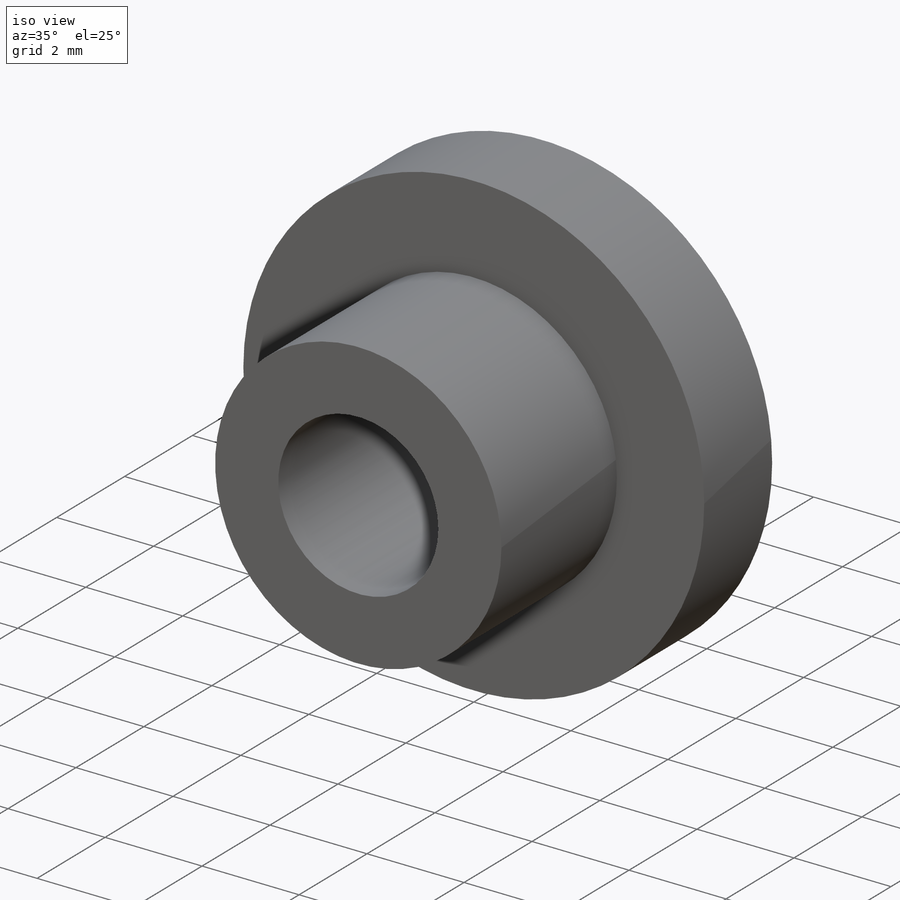
[diagram: iso view]
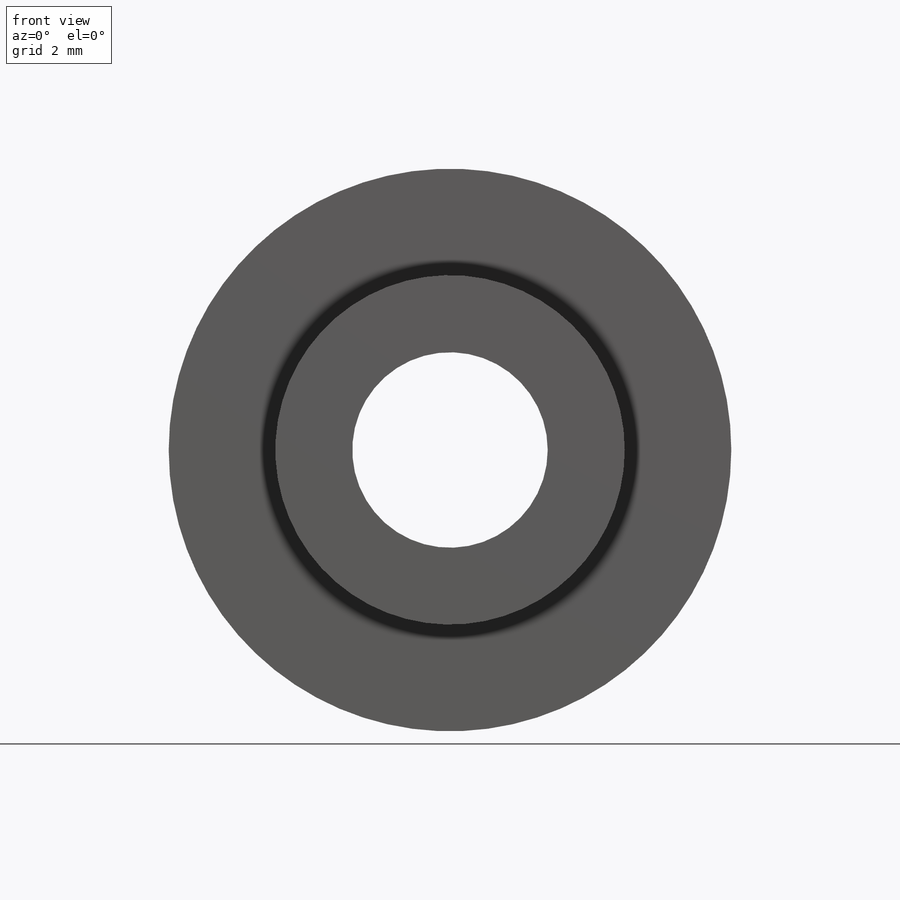
[diagram: front view]
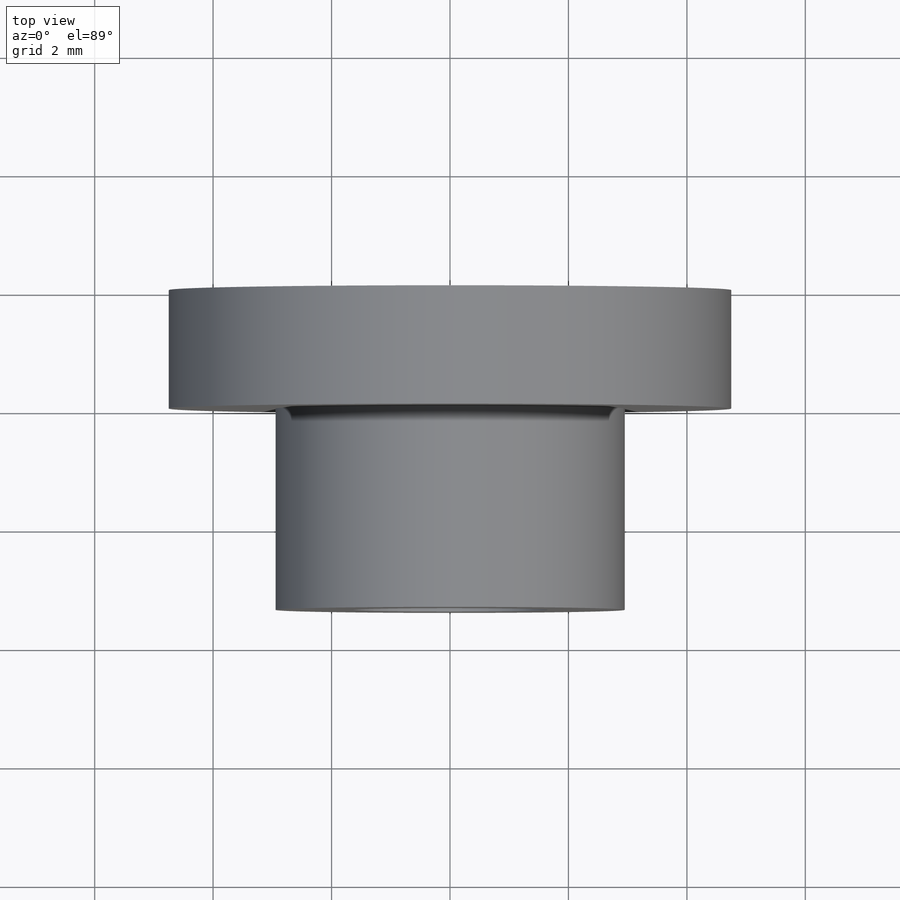
[diagram: top view]
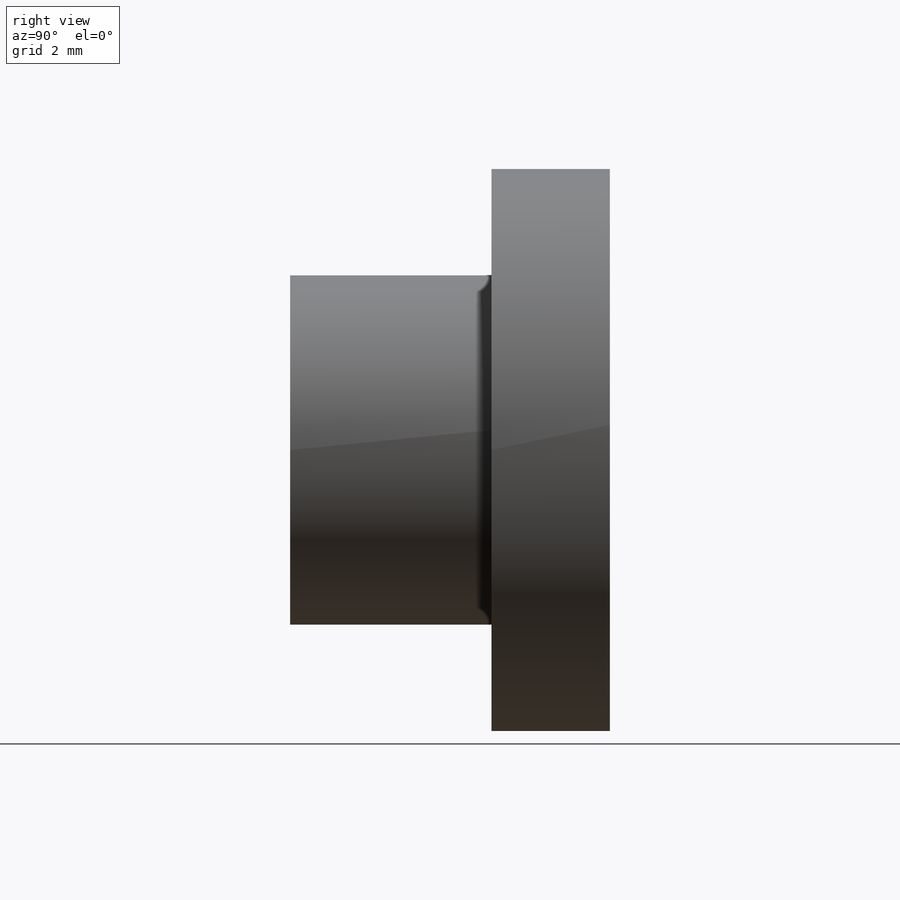
[diagram: right view]
SOLIDWORKS PART (.sldprt)
format: sldprt  version: not decoded by parser v0  size: 201,216 bytes
history: native  units: mm
features: sketch x3, material x1, revolve x1, hole x1, thread x1 (+11 scaffold rows collapsed)
feature tree (18):
  scaffold x11  (default folders/planes/origin — collapsed)
  material  "6061-T6 (SS)"
  sketch  "Sketch1"  dims[c1.D1=9.5mm c1.D2=5.9mm c1.D3=2.0mm c1.D4=5.5mm c1.D5=3.2mm c2.D4=5.4mm c2.D6=4.0mm]
  revolve  "Revolve1"  Angle=360deg
  hole  "M4x0.7 Tapped Hole1"  Diameter=3.3mm Depth=5.4mm
  sketch  "Sketch3"
  sketch  "Sketch2"  dims[hole-wizard template sketch: 60 standard entries collapsed; hole parameters kept: c18.Thru Tap Drill Depth=5.4mm]
  thread  "Hole Thread2"  Diameter=4mm  [1 undecoded]
decode coverage: 5 of 6 modeling features carry decoded parameters
note: ~ marks probable driven/reference dimensions
note: 1 parameter value undecoded
note: suppression state not decoded; provenance and decode notes live in map.json
